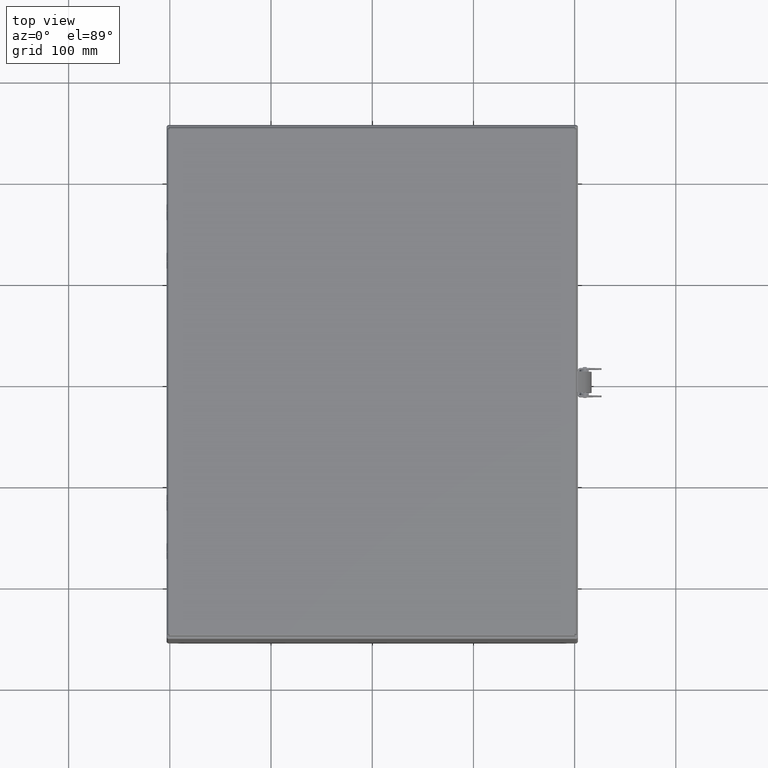
[diagram: clean part render]
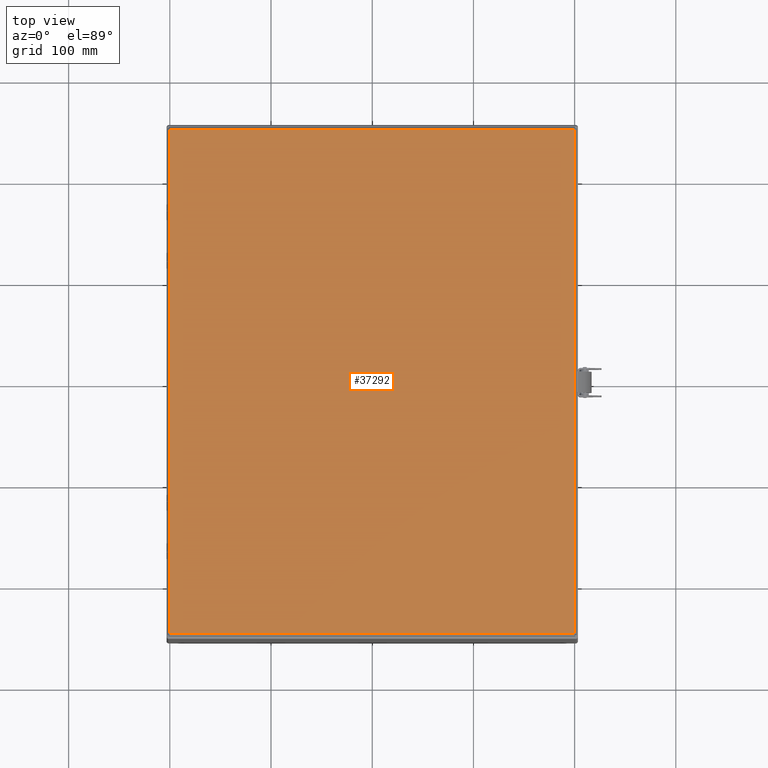
[diagram: same view with one face highlighted and labeled with its STEP entity id]
A machine part, top view. The second image highlights one B-rep face of the part: STEP entity #37292.
In plain terms, the highlighted planar face has unit normal (0, 0, 1).
Its self-contained STEP definition (entity closure, byte-faithful):
#3814=LINE('',#66103,#6011);
#3823=LINE('',#66164,#6020);
#3853=LINE('',#66349,#6050);
#3854=LINE('',#66351,#6051);
#6011=VECTOR('',#44395,0.393700787401575);
#6020=VECTOR('',#44412,0.393700787401575);
#6050=VECTOR('',#44472,0.393700787401575);
#6051=VECTOR('',#44475,0.393700787401575);
#9358=FACE_OUTER_BOUND('',#11682,.T.);
#11682=EDGE_LOOP('',(#28277,#28278,#28279,#28280));
#16120=VERTEX_POINT('',#65969);
#16125=VERTEX_POINT('',#66023);
#16130=VERTEX_POINT('',#66095);
#16137=VERTEX_POINT('',#66163);
#20438=EDGE_CURVE('',#16120,#16130,#3814,.T.);
#20451=EDGE_CURVE('',#16137,#16125,#3823,.T.);
#20489=EDGE_CURVE('',#16125,#16120,#3853,.T.);
#20490=EDGE_CURVE('',#16130,#16137,#3854,.T.);
#28277=ORIENTED_EDGE('',*,*,#20489,.T.);
#28278=ORIENTED_EDGE('',*,*,#20438,.T.);
#28279=ORIENTED_EDGE('',*,*,#20490,.T.);
#28280=ORIENTED_EDGE('',*,*,#20451,.T.);
#35994=PLANE('',#40197);
#37292=ADVANCED_FACE('',(#9358),#35994,.T.);
#40197=AXIS2_PLACEMENT_3D('',#66350,#44473,#44474);
#44395=DIRECTION('',(1.,0.,0.));
#44412=DIRECTION('',(-1.,0.,0.));
#44472=DIRECTION('',(0.,-1.,0.));
#44473=DIRECTION('center_axis',(0.,0.,1.));
#44474=DIRECTION('ref_axis',(1.,0.,0.));
#44475=DIRECTION('',(-1.4247070769097E-16,1.,0.));
#65969=CARTESIAN_POINT('',(-7.875,-9.8175,0.053));
#66023=CARTESIAN_POINT('',(-7.875,9.8175,0.053));
#66095=CARTESIAN_POINT('',(7.875,-9.8175,0.053));
#66103=CARTESIAN_POINT('',(-3.9795,-9.8175,0.053));
#66163=CARTESIAN_POINT('',(7.875,9.8175,0.053));
#66164=CARTESIAN_POINT('',(3.9795,9.8175,0.053));
#66349=CARTESIAN_POINT('',(-7.875,4.90875,0.053));
#66350=CARTESIAN_POINT('Origin',(-5.07740960366726E-16,6.99353086378051E-16,
0.053));
#66351=CARTESIAN_POINT('',(7.875,-4.90875,0.053));